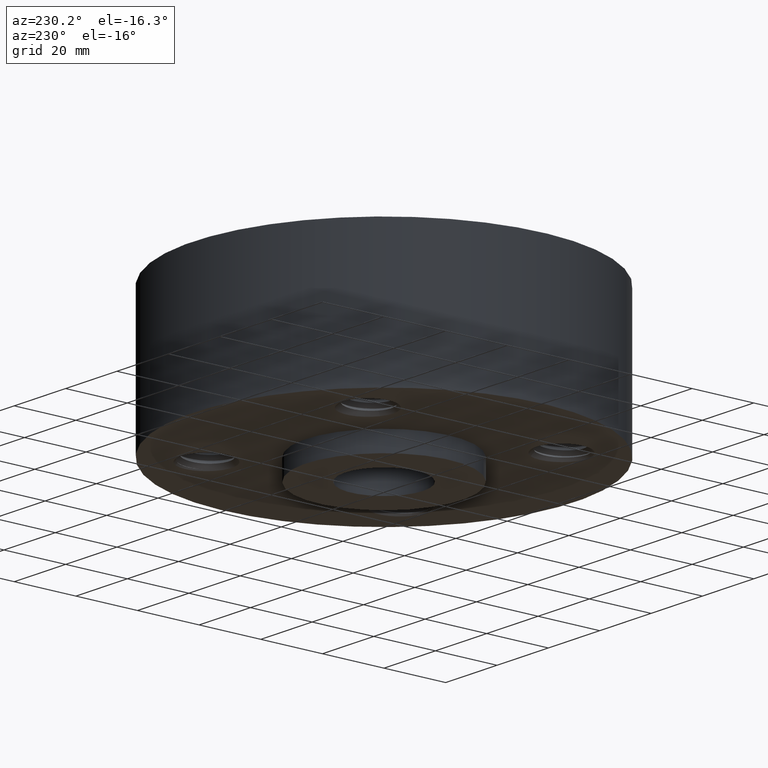
[diagram: clean part render]
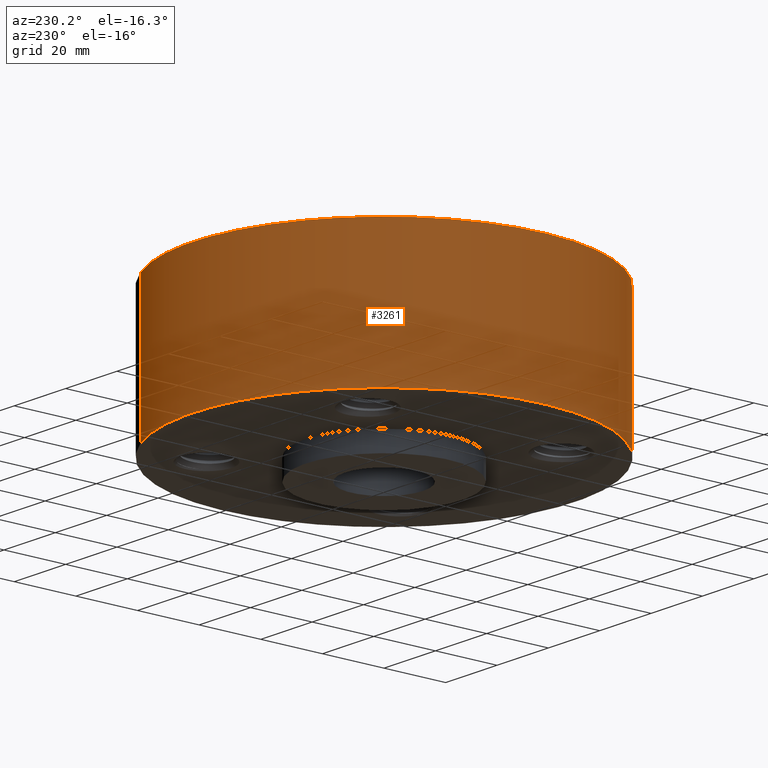
[diagram: same view with one face highlighted and labeled with its STEP entity id]
A machine part, auxiliary view. The second image highlights one B-rep face of the part: STEP entity #3261.
In plain terms, the highlighted cylindrical surface (partial cylindrical patch) has radius 61.976 mm, axis along (0, 0, -1).
Its self-contained STEP definition (entity closure, byte-faithful):
#3138=AXIS2_PLACEMENT_3D('Circle Axis2P3D',#3136,#3137,$) ;
#3234=AXIS2_PLACEMENT_3D('Cylinder Axis2P3D',#3231,#3232,#3233) ;
#3245=AXIS2_PLACEMENT_3D('Circle Axis2P3D',#3243,#3244,$) ;
#3136=CARTESIAN_POINT('Axis2P3D Location',(0.,0.,0.)) ;
#3140=CARTESIAN_POINT('Vertex',(-1.1697983142,-2.14130145102,-3.72055841953E-014)) ;
#3142=CARTESIAN_POINT('Vertex',(1.1697983142,2.14130145102,-3.72055841953E-014)) ;
#3231=CARTESIAN_POINT('Axis2P3D Location',(0.,0.,0.750000000003)) ;
#3236=CARTESIAN_POINT('Line Origine',(-1.1697983142,-2.14130145102,0.875000000003)) ;
#3240=CARTESIAN_POINT('Vertex',(-1.1697983142,-2.14130145102,1.75000000001)) ;
#3243=CARTESIAN_POINT('Axis2P3D Location',(0.,0.,1.75000000001)) ;
#3247=CARTESIAN_POINT('Vertex',(1.1697983142,2.14130145102,1.75000000001)) ;
#3250=CARTESIAN_POINT('Line Origine',(1.1697983142,2.14130145102,0.875000000003)) ;
#3137=DIRECTION('Axis2P3D Direction',(0.,0.,-0.0393700787402)) ;
#3232=DIRECTION('Axis2P3D Direction',(0.,0.,-0.0393700787402)) ;
#3233=DIRECTION('Axis2P3D XDirection',(0.0188750212049,0.0345504945626,0.)) ;
#3237=DIRECTION('Vector Direction',(0.,0.,-0.0393700787402)) ;
#3244=DIRECTION('Axis2P3D Direction',(0.,0.,-0.0393700787402)) ;
#3251=DIRECTION('Vector Direction',(0.,0.,-0.0393700787402)) ;
#3238=VECTOR('Line Direction',#3237,0.0393700787402) ;
#3252=VECTOR('Line Direction',#3251,0.0393700787402) ;
#3256=ORIENTED_EDGE('',*,*,#3144,.F.) ;
#3257=ORIENTED_EDGE('',*,*,#3242,.T.) ;
#3258=ORIENTED_EDGE('',*,*,#3249,.T.) ;
#3259=ORIENTED_EDGE('',*,*,#3254,.F.) ;
#3261=ADVANCED_FACE('PartBody',(#3260),#3235,.T.) ;
#3139=CIRCLE('generated circle',#3138,2.44000000001) ;
#3246=CIRCLE('generated circle',#3245,2.44000000001) ;
#3235=CYLINDRICAL_SURFACE('generated cylinder',#3234,2.44000000001) ;
#3144=EDGE_CURVE('',#3141,#3143,#3139,.T.) ;
#3242=EDGE_CURVE('',#3141,#3241,#3239,.F.) ;
#3249=EDGE_CURVE('',#3241,#3248,#3246,.T.) ;
#3254=EDGE_CURVE('',#3143,#3248,#3253,.F.) ;
#3255=EDGE_LOOP('',(#3256,#3257,#3258,#3259)) ;
#3260=FACE_OUTER_BOUND('',#3255,.T.) ;
#3239=LINE('Line',#3236,#3238) ;
#3253=LINE('Line',#3250,#3252) ;
#3141=VERTEX_POINT('',#3140) ;
#3143=VERTEX_POINT('',#3142) ;
#3241=VERTEX_POINT('',#3240) ;
#3248=VERTEX_POINT('',#3247) ;